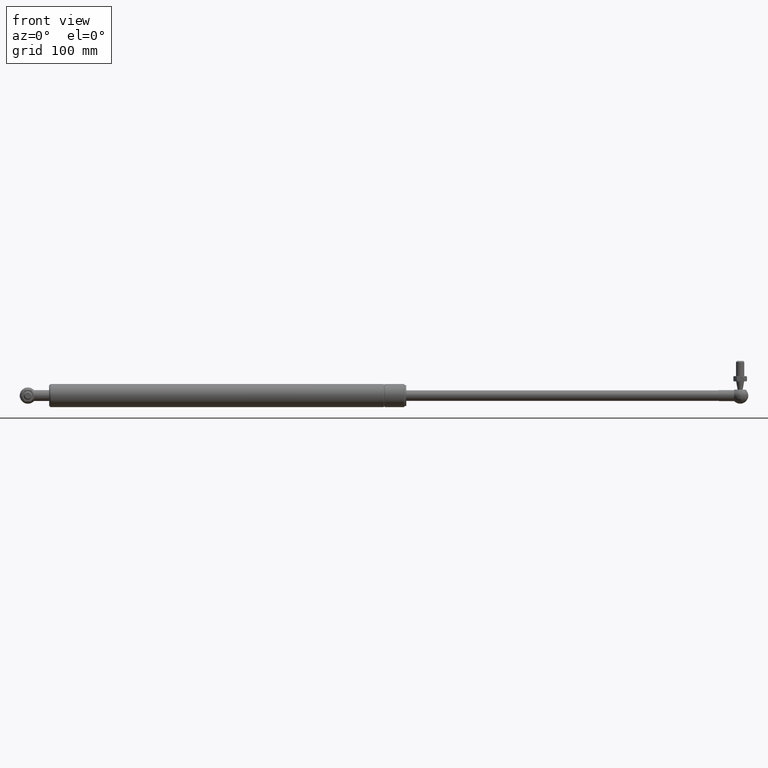
[diagram: clean part render]
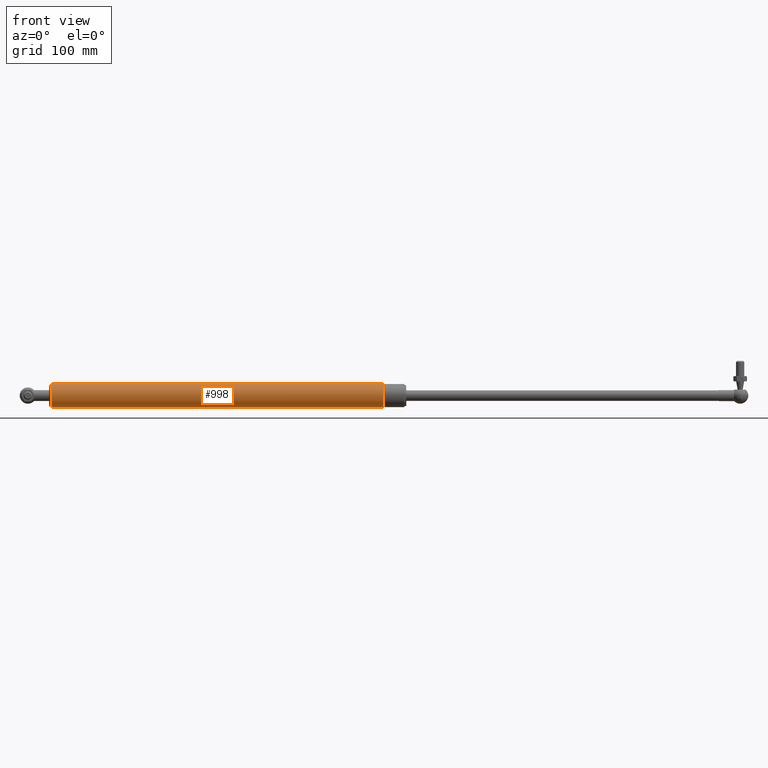
[diagram: same view with one face highlighted and labeled with its STEP entity id]
A machine part, front view. The second image highlights one B-rep face of the part: STEP entity #998.
In plain terms, the highlighted cylindrical surface (bore or boss wall) has radius 11 mm, axis along (1, 0, 0).
Its self-contained STEP definition (entity closure, byte-faithful):
#211=CYLINDRICAL_SURFACE('',#1085,11.);
#253=FACE_BOUND('',#366,.T.);
#290=FACE_OUTER_BOUND('',#365,.T.);
#365=EDGE_LOOP('',(#745));
#366=EDGE_LOOP('',(#746));
#457=CIRCLE('',#1074,11.);
#463=CIRCLE('',#1083,11.);
#507=VERTEX_POINT('',#1440);
#513=VERTEX_POINT('',#1455);
#605=EDGE_CURVE('',#507,#507,#457,.T.);
#611=EDGE_CURVE('',#513,#513,#463,.T.);
#745=ORIENTED_EDGE('',*,*,#605,.F.);
#746=ORIENTED_EDGE('',*,*,#611,.F.);
#998=ADVANCED_FACE('',(#290,#253),#211,.T.);
#1074=AXIS2_PLACEMENT_3D('',#1441,#1193,#1194);
#1083=AXIS2_PLACEMENT_3D('',#1456,#1211,#1212);
#1085=AXIS2_PLACEMENT_3D('',#1458,#1215,#1216);
#1193=DIRECTION('center_axis',(-1.,0.,1.22091974848808E-16));
#1194=DIRECTION('ref_axis',(1.22091974848808E-16,0.,1.));
#1211=DIRECTION('center_axis',(1.,0.,-1.22091974848808E-16));
#1212=DIRECTION('ref_axis',(-1.26161707343768E-16,1.22464679914735E-16,
-1.));
#1215=DIRECTION('center_axis',(-1.,0.,1.22091974848808E-16));
#1216=DIRECTION('ref_axis',(1.22091974848808E-16,0.,1.));
#1440=CARTESIAN_POINT('',(21.5,0.,11.));
#1441=CARTESIAN_POINT('Origin',(21.5,0.,-2.62497745924936E-15));
#1455=CARTESIAN_POINT('',(339.,-2.69422295812418E-15,11.));
#1456=CARTESIAN_POINT('Origin',(339.,0.,-4.13891794737458E-14));
#1458=CARTESIAN_POINT('Origin',(181.25,0.,-2.21291704413464E-14));